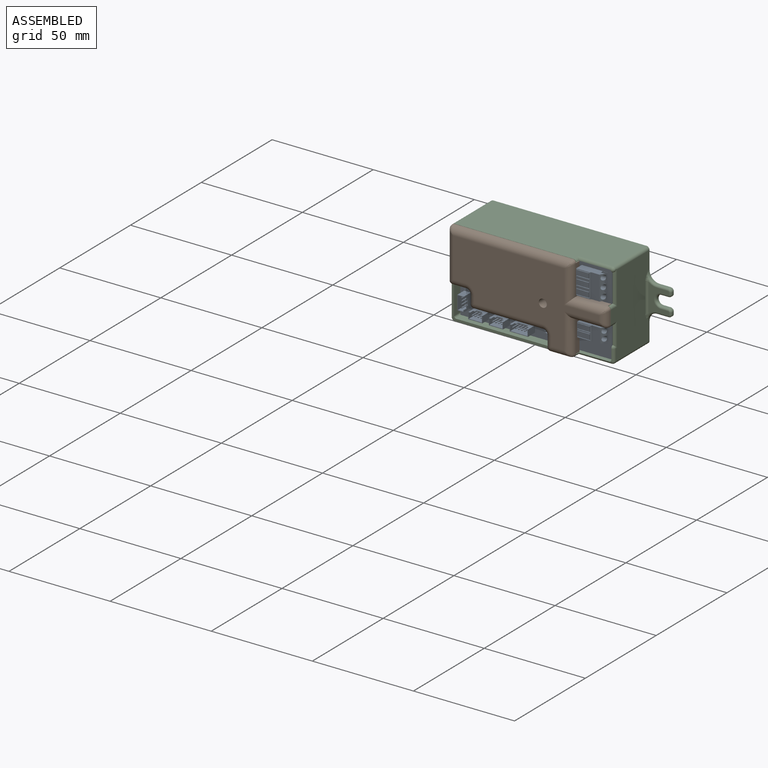
[diagram: assembled view]
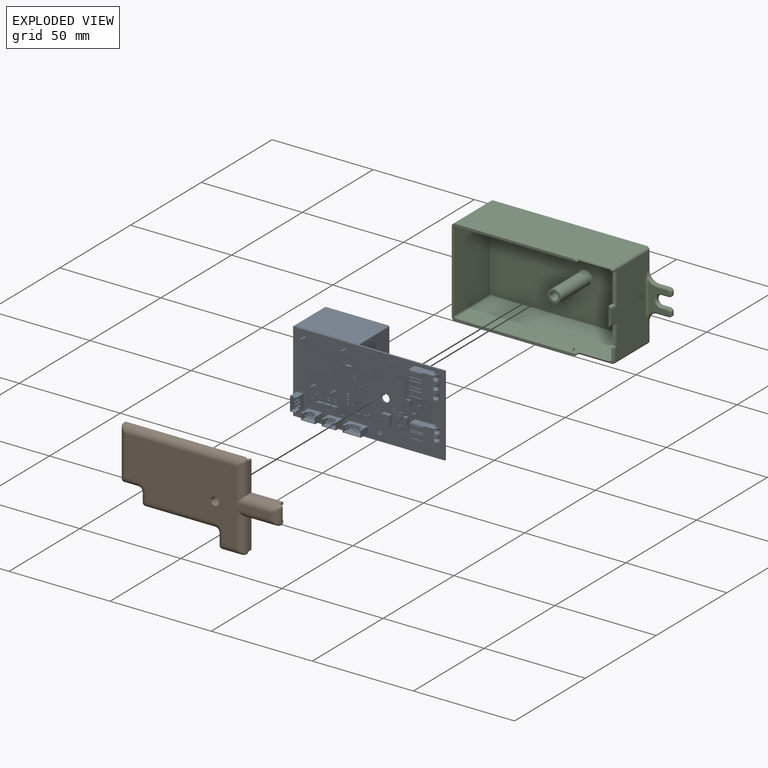
[diagram: exploded view]
GUIDED TOUR — MATED ASSEMBLY WITH SUBASSEMBLIES (Onshape document 57976f48e4b0c794bdea1abc, AutoMate assembly 57976f48e4b0c794bdea1abc_2b415a0333e4cbea0e41d511_ac2d905284503aa55e5fa16b_default)

This assembly has 10 component occurrences arranged in 3 top-level units: 2 individual components plus 1 subassembly (S0). The tour has two levels: first the top level, where each subassembly is treated as one rigid unit; then each subassembly is toured internally in its own section (nesting deeper than one subassembly level is flattened into its subassembly's section).

Components are labeled P0..P9 across the whole record; subassembly units are labeled S0..S0. A mate is a constraint between two units; its type names the relative motion it leaves free:
  FASTENED — locks the two components together rigidly (no relative motion).
Axis/direction vectors are unit vectors and 'through' points are millimeter coordinates, both in the assembly's world frame.

TOP-LEVEL MATES (between units; each subassembly's internal mates are listed in its own section)
  1. FASTENED "Fastened 2": S0 <-> P8, direction (0.000, 1.000, 0.000) through (8.66, 0.98, 0.19) mm
  2. FASTENED "Fastened 1": P8 <-> P1, direction (0.000, -1.000, 0.000) through (8.66, 1.23, 0.19) mm

TOP-LEVEL ASSEMBLY ORDER
  1. P8 — the base component [order verified]
  2. S0 [order verified]
  3. P1 [order verified]
Order-tag legend:
  [order verified] — this step's position reverses a verified removal order: the component was checked to insert without passing through the ones already placed.

Of the 10 component occurrences, 1 carries the full construction recipe — the FeatureScript program that regenerates the part's solid from scratch; the rest are supplied as boundary geometry only. Each toured unit is shown spotlighted twice — assembled, then exploded with a leader line back to its socket (green = recipe-attached component, orange = geometry-only, blue = subassembly unit; the rest desaturated gray).
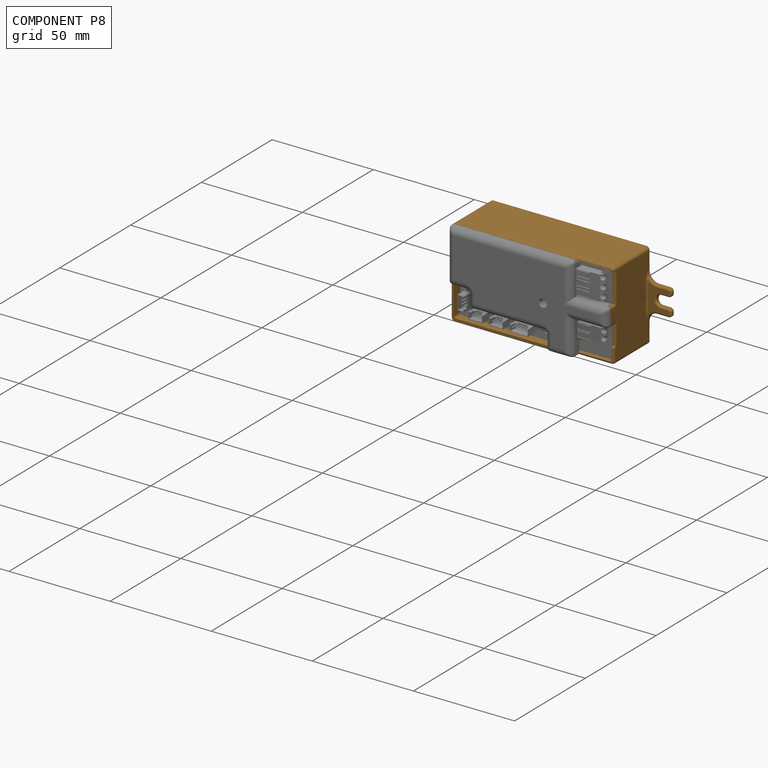
[diagram: component P8 — assembled]
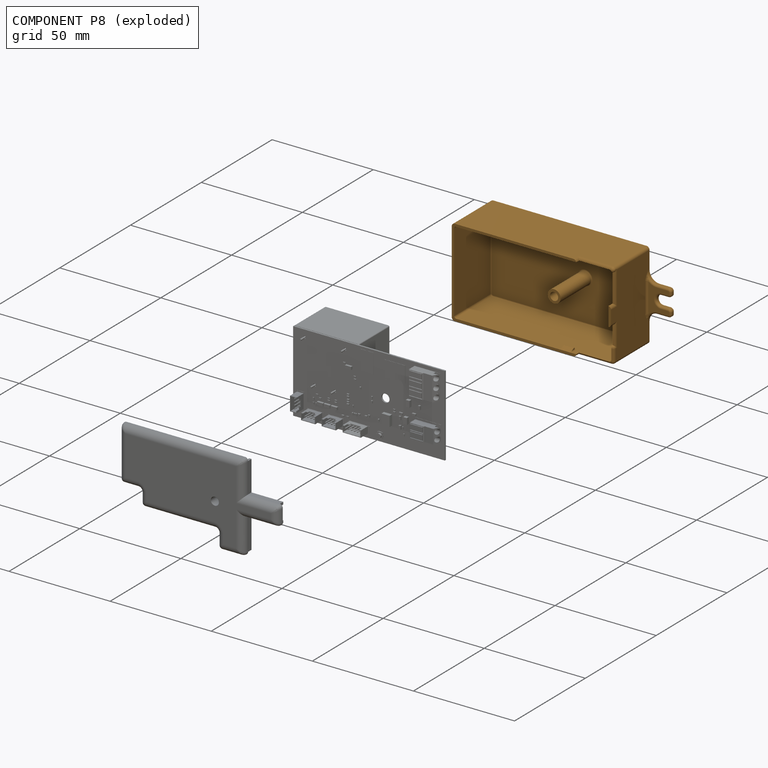
[diagram: component P8 — exploded]
COMPONENT P8 — geometry summary (no construction recipe available for this part):
  bounding box: 103.6 x 44.3 x 28.1 mm
  B-rep topology: 1 solid, 137 faces, 680 edges
  volume: 12294 mm^3 (10% of its bounding box)
Held by: FASTENED mate "Fastened 2" to P0; FASTENED mate "Fastened 1" to P1.
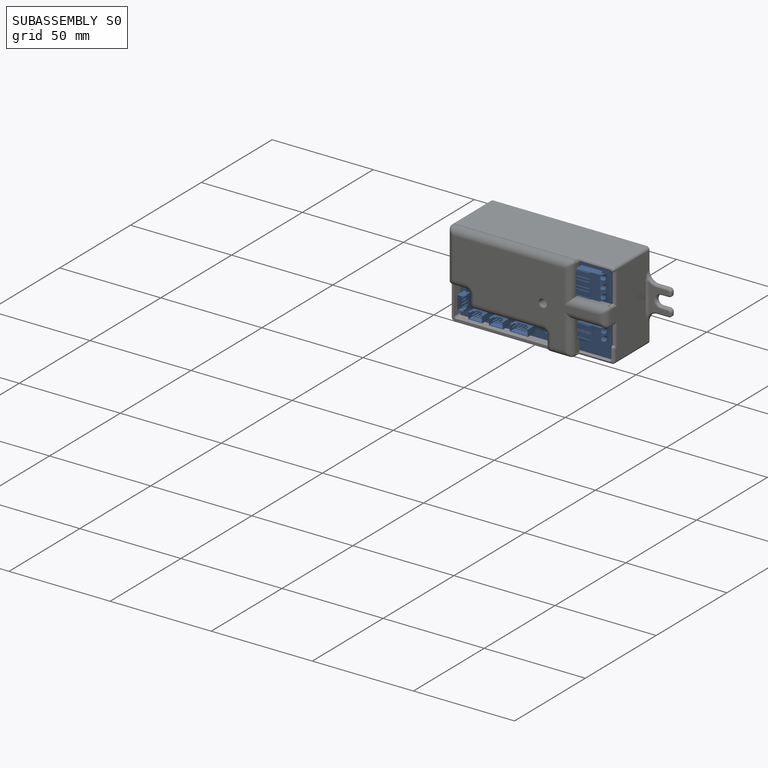
[diagram: subassembly S0 — assembled]
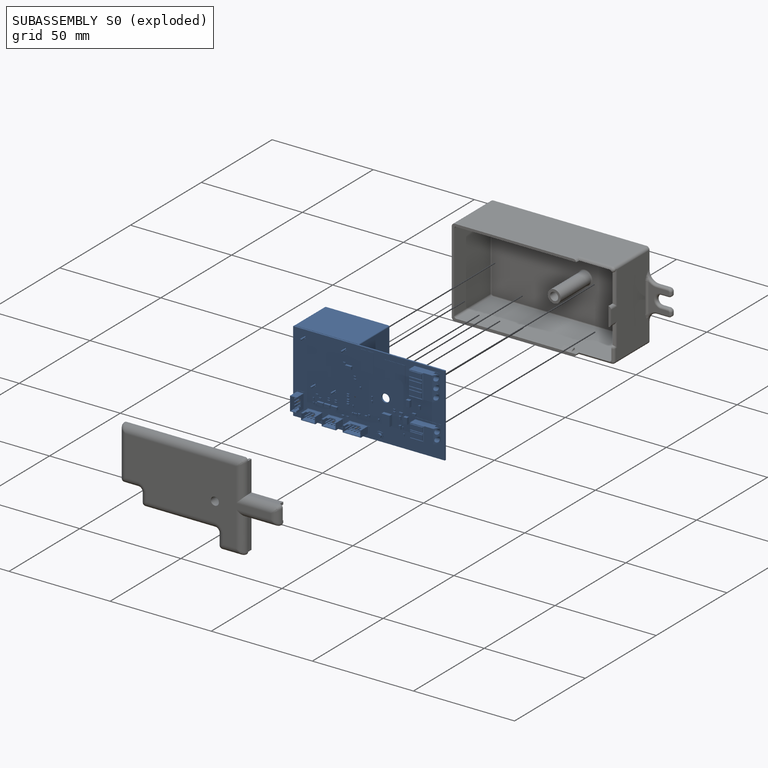
[diagram: subassembly S0 — exploded]
SUBASSEMBLY S0 — 8 components (P0, P2, P3, P4, P5, P6, P7, P9), of which 1 recipe-attached; toured below.
Held by: FASTENED mate "Fastened 2" to P8.
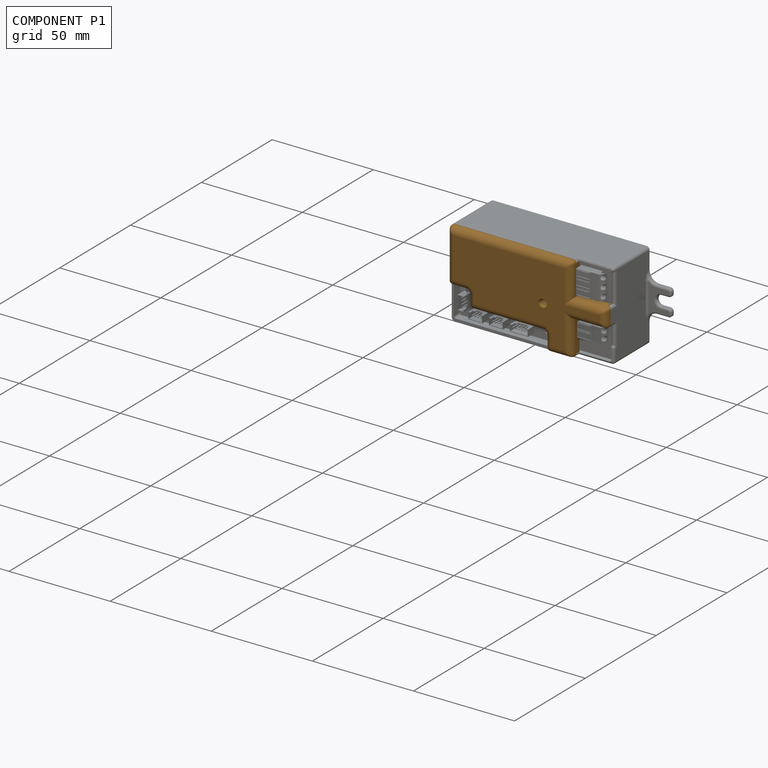
[diagram: component P1 — assembled]
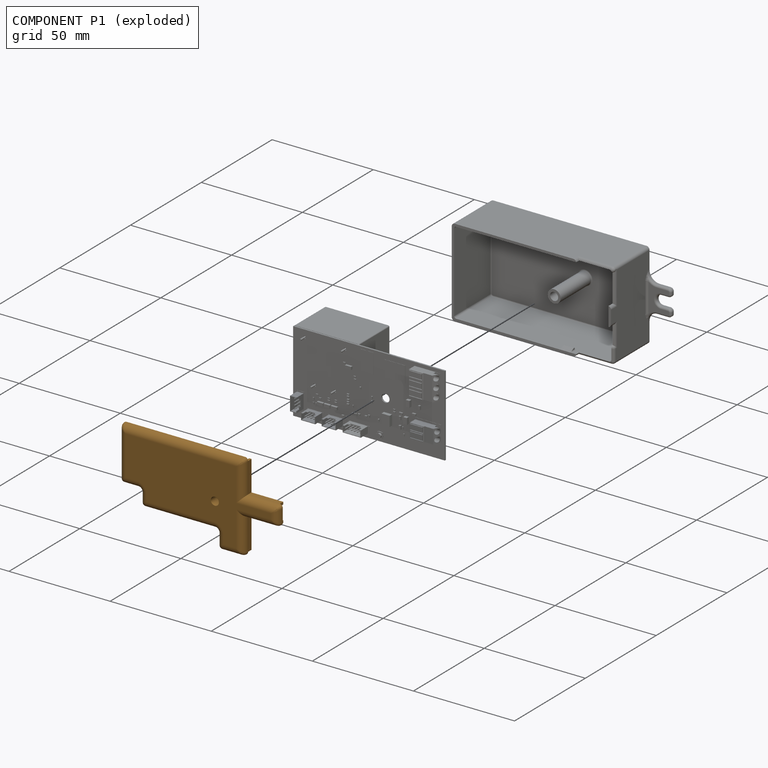
[diagram: component P1 — exploded]
COMPONENT P1 — geometry summary (no construction recipe available for this part):
  bounding box: 78.7 x 43.5 x 7.0 mm
  B-rep topology: 1 solid, 106 faces, 514 edges
  volume: 3355 mm^3 (14% of its bounding box)
Held by: FASTENED mate "Fastened 1" to P8.
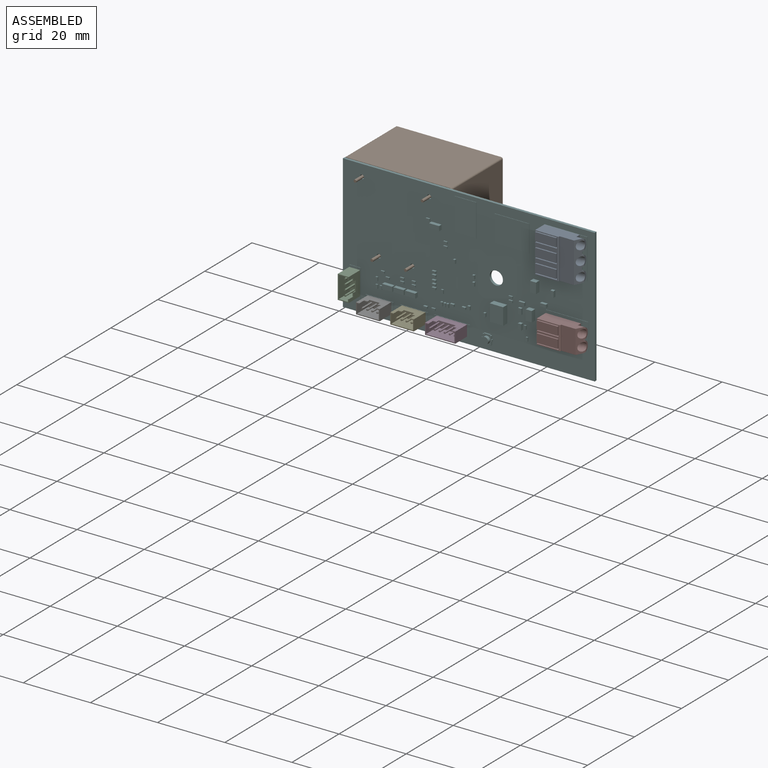
[diagram: subassembly S0 — assembled view]
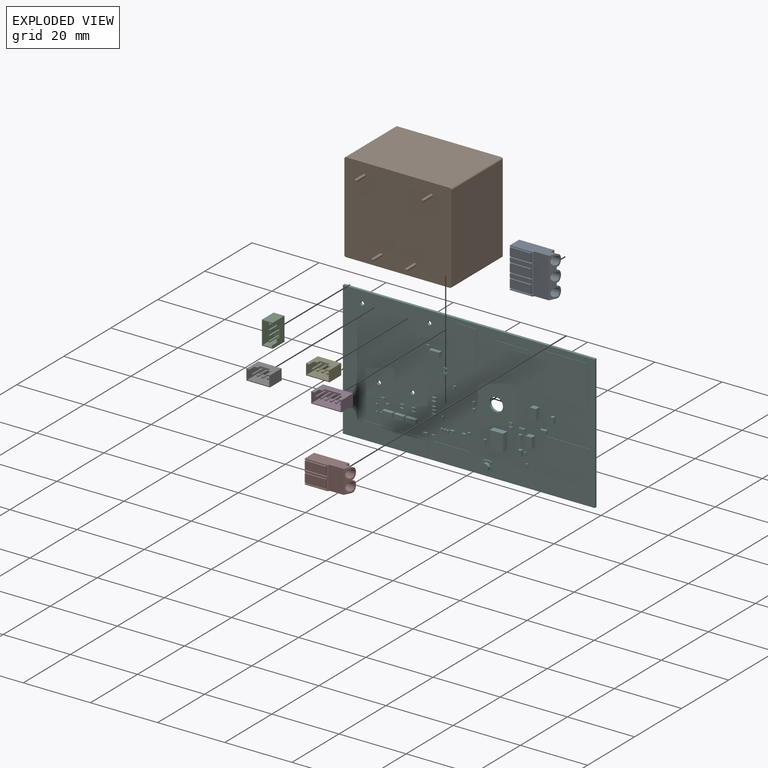
[diagram: subassembly S0 — exploded view]
SUBASSEMBLY S0 TOUR — 8 components, shown here in isolation at its own camera.

INTERNAL MATES
  1. FASTENED "Fastened 3": P0 <-> P6, direction (0.000, 1.000, 0.000) through (23.09, 0.10, 18.54) mm
  2. FASTENED "Fastened 7": P4 <-> P6, direction (0.000, 1.000, 0.000) through (-4.47, 0.10, -16.22) mm
  3. FASTENED "Fastened 1": P2 <-> P6, direction (0.000, -1.000, 0.000) through (-11.30, 1.18, 16.75) mm
  4. FASTENED "Fastened 4": P3 <-> P6, direction (0.000, 1.000, 0.000) through (-35.03, 0.20, -15.45) mm
  5. FASTENED "Fastened 6": P7 <-> P6, direction (0.000, 1.000, 0.000) through (-26.01, 0.10, -16.22) mm
  6. FASTENED "Fastened 5": P5 <-> P6, direction (0.000, 1.000, 0.000) through (-15.81, 0.10, -16.22) mm
  7. FASTENED "Fastened 2": P9 <-> P6, direction (0.000, 1.000, 0.000) through (23.49, 0.20, -12.20) mm
  8. FASTENED "Fastened 4": P3 <-> P6, direction (0.000, 1.000, 0.000) through (-35.03, 0.20, -15.45) mm
  9. FASTENED "Fastened 7": P4 <-> P6, direction (0.000, 1.000, 0.000) through (-4.47, 0.10, -16.22) mm
  10. FASTENED "Fastened 2": P9 <-> P6, direction (0.000, 1.000, 0.000) through (23.49, 0.20, -12.20) mm
  11. FASTENED "Fastened 3": P0 <-> P6, direction (0.000, 1.000, 0.000) through (23.09, 0.10, 18.54) mm
  12. FASTENED "Fastened 5": P5 <-> P6, direction (0.000, 1.000, 0.000) through (-15.81, 0.10, -16.22) mm
  13. FASTENED "Fastened 6": P7 <-> P6, direction (0.000, 1.000, 0.000) through (-26.01, 0.10, -16.22) mm
  14. FASTENED "Fastened 1": P2 <-> P6, direction (0.000, -1.000, 0.000) through (-11.30, 1.18, 16.75) mm

ASSEMBLY ORDER (within the subassembly)
  1. P2 — the base component [order verified]
  2. P6 [order verified]
  3. P9 [order verified]
  4. P3 [order verified]
  5. P7 [order verified]
  6. P5 [order verified]
  7. P4 [order verified]
  8. P0 [order verified]
Order-tag legend:
  [order verified] — this step's position reverses a verified removal order: the component was checked to insert without passing through the ones already placed.
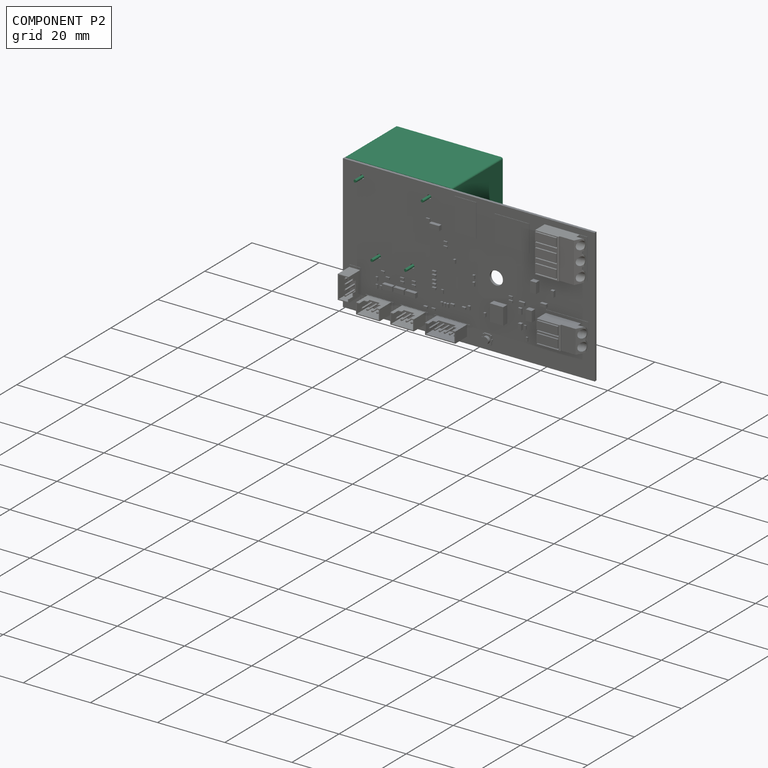
[diagram: component P2 — assembled]
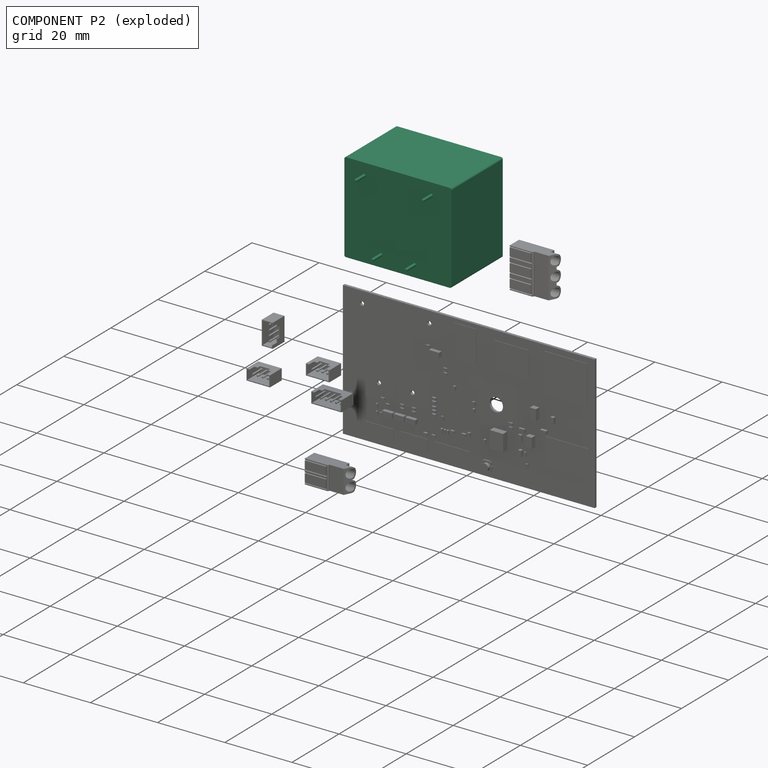
[diagram: component P2 — exploded]
COMPONENT P2 — recipe-attached (CADFS 00221526, mesh-verified: the recipe's output STEP matches this component's geometry to below the mesh-comparison resolution (tessellation chordal tolerance ~0.0736 mm)).
Held by: FASTENED mate "Fastened 1" to P6; FASTENED mate "Fastened 1" to P6.
Construction recipe (FeatureScript — the CAD program that rebuilds this solid; sketch coordinates are in the units given by the * unit suffixes, e.g. mm):

FeatureScript 1511;
import(path : "onshape/std/geometry.fs", version : "1511.0");
import(path : "onshape/std/common.fs", version : "1511.0");
const mm = millimeter;
const VERTEX = EntityType.VERTEX;
const EDGE = EntityType.EDGE;
const FACE = EntityType.FACE;
const BODY = EntityType.BODY;
function v(x, y){return vector(x, y);}
function OD(order){return orderDisambiguation(order);}
function OSD(set){return originalSetDisambiguation(set);}
function TD(topology){return topologyDisambiguation(topology);}
function TDD(query){return trueDependencyDisambiguation(query);}
function sQuery(a, b, c) {return sketchEntityQuery(a, b, c);}

annotation { "Feature Type Name" : "Feature", "Feature Type Description" : "" }
export const myFeature = defineFeature(function(context is Context, id is Id, definition is map)
    precondition{}
    {
        {
            var Q0;
            Q0=qCreatedBy(makeId("Front.planeOp"),FACE);
            var sketch = newSketch(context, id + "F0", { "sketchPlane" : qUnion([Q0])});
            skLineSegment(sketch, "E0", {"start": v(0, 0) * mm, "end": v(15.95, 0) * mm, "construction": true});
            skLineSegment(sketch, "E1", {"start": v(0, 0) * mm, "end": v(0, 10) * mm, "construction": true});
            skLineSegment(sketch, "E2", {"start": v(0, 10) * mm, "end": v(10, 10) * mm, "construction": true});
            skLineSegment(sketch, "E3", {"start": v(0, 0) * mm, "end": v(0, -10) * mm, "construction": true});
            skLineSegment(sketch, "E4", {"start": v(0, -10) * mm, "end": v(5, -10) * mm, "construction": true});
            skCircle(sketch, "E5", {"center": v(5, -10) * mm, "radius": 0.4 * mm, "construction": true});
            skCircle(sketch, "E6", {"center": v(10, 10) * mm, "radius": 0.4 * mm, "construction": true});
            skLineSegment(sketch, "E7", {"start": v(15.95, 0) * mm, "end": v(15.95, 12.95) * mm});
            skLineSegment(sketch, "E8", {"start": v(15.45, 13.45) * mm, "end": v(0, 13.45) * mm});
            skLineSegment(sketch, "E9", {"start": v(15.95, 0) * mm, "end": v(15.95, -12.95) * mm});
            skLineSegment(sketch, "E10", {"start": v(15.45, -13.45) * mm, "end": v(0, -13.45) * mm});
            skPoint(sketch, "E11.visualSharp", {"position": v(15.95, 13.45) * mm});
            skArc(sketch, "E11.filletArc", {"start": v(15.95, 12.95) * mm, "mid": v(15.8, 13.3) * mm, "end": v(15.45, 13.45) * mm});
            skPoint(sketch, "E12.visualSharp", {"position": v(15.95, -13.45) * mm});
            skArc(sketch, "E12.filletArc", {"start": v(15.45, -13.45) * mm, "mid": v(15.8, -13.3) * mm, "end": v(15.95, -12.95) * mm});
            skArc(sketch, "E13.MirrorCS", {"start": v(-15.45, -13.45) * mm, "mid": v(-15.8, -13.3) * mm, "end": v(-15.95, -12.95) * mm});
            skLineSegment(sketch, "E14.MirrorCS", {"start": v(-15.45, -13.45) * mm, "end": v(0, -13.45) * mm});
            skPoint(sketch, "E15.MirrorP", {"position": v(-15.95, -13.45) * mm});
            skLineSegment(sketch, "E16.MirrorCS", {"start": v(-15.95, 0) * mm, "end": v(-15.95, -12.95) * mm});
            skArc(sketch, "E17.MirrorCS", {"start": v(-15.95, 12.95) * mm, "mid": v(-15.8, 13.3) * mm, "end": v(-15.45, 13.45) * mm});
            skCircle(sketch, "E18.MirrorC", {"center": v(-10, 10) * mm, "radius": 0.4 * mm, "construction": true});
            skCircle(sketch, "E19.MirrorC", {"center": v(-5, -10) * mm, "radius": 0.4 * mm, "construction": true});
            skLineSegment(sketch, "E20.MirrorCS", {"start": v(0, 0) * mm, "end": v(-15.95, 0) * mm, "construction": true});
            skPoint(sketch, "E21.MirrorP", {"position": v(-15.95, 13.45) * mm});
            skLineSegment(sketch, "E22.MirrorCS", {"start": v(-15.45, 13.45) * mm, "end": v(0, 13.45) * mm});
            skLineSegment(sketch, "E23.MirrorCS", {"start": v(-15.95, 0) * mm, "end": v(-15.95, 12.95) * mm});
            skLineSegment(sketch, "E24.MirrorCS", {"start": v(0, 10) * mm, "end": v(-10, 10) * mm, "construction": true});
            skLineSegment(sketch, "E25.MirrorCS", {"start": v(0, -10) * mm, "end": v(-5, -10) * mm, "construction": true});
            skSolve(sketch);
        }
        {
            var Q0;
            Q0=qSketchRegion(id+"F0",true);
            extrude(context, id + "F1", {"entities" : qUnion([Q0]), "depth" : 21.8 * mm});
        }
        {
            var Q0;
            Q0=makeQuery(id+"F1.opExtrude","CAP_FACE",FACE,{"disambiguationData":[OSD([sQuery(id+"F0.wireOp",EDGE,"E7"),sQuery(id+"F0.wireOp",EDGE,"E8"),sQuery(id+"F0.wireOp",EDGE,"E9"),sQuery(id+"F0.wireOp",EDGE,"E10"),sQuery(id+"F0.wireOp",EDGE,"E11.filletArc"),sQuery(id+"F0.wireOp",EDGE,"E12.filletArc"),sQuery(id+"F0.wireOp",EDGE,"E13.MirrorCS"),sQuery(id+"F0.wireOp",EDGE,"E14.MirrorCS"),sQuery(id+"F0.wireOp",EDGE,"E16.MirrorCS"),sQuery(id+"F0.wireOp",EDGE,"E17.MirrorCS"),sQuery(id+"F0.wireOp",EDGE,"E22.MirrorCS"),sQuery(id+"F0.wireOp",EDGE,"E23.MirrorCS")])],"isStart":false});
            var sketch = newSketch(context, id + "F2", { "sketchPlane" : qUnion([Q0])});
            skCircle(sketch, "E26", {"center": v(10, 10) * mm, "radius": 0.4 * mm});
            skCircle(sketch, "E27", {"center": v(-10, 10) * mm, "radius": 0.4 * mm});
            skCircle(sketch, "E28", {"center": v(-5, -10) * mm, "radius": 0.4 * mm});
            skCircle(sketch, "E29", {"center": v(5, -10) * mm, "radius": 0.4 * mm});
            skSolve(sketch);
        }
        {
            var Q0;
            Q0=qSketchRegion(id+"F2",true);
            extrude(context, id + "F3", {"entities" : qUnion([Q0]), "operationType" : NewBodyOperationType.ADD, "depth" : 4 * mm});
        }
    });
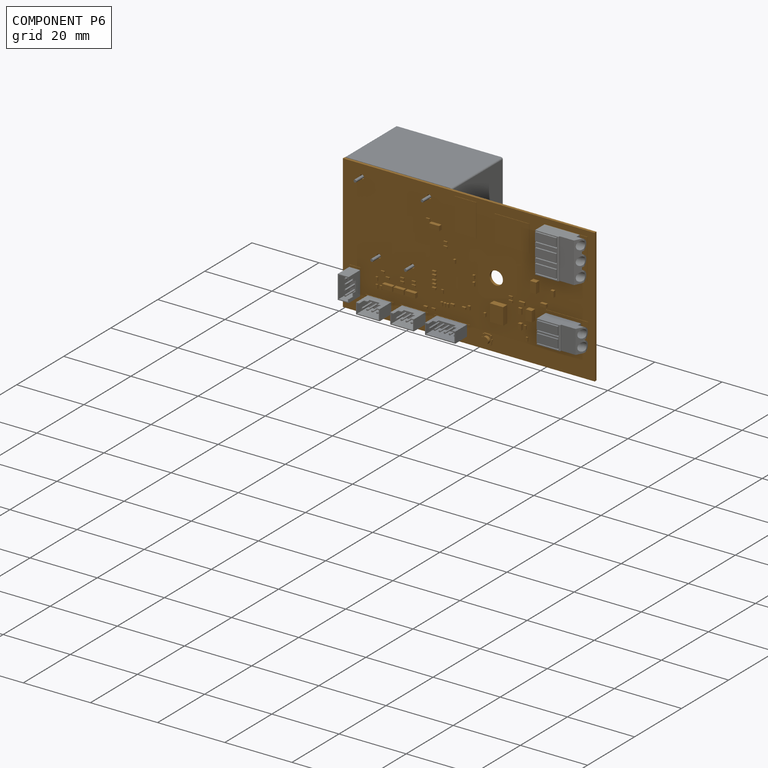
[diagram: component P6 — assembled]
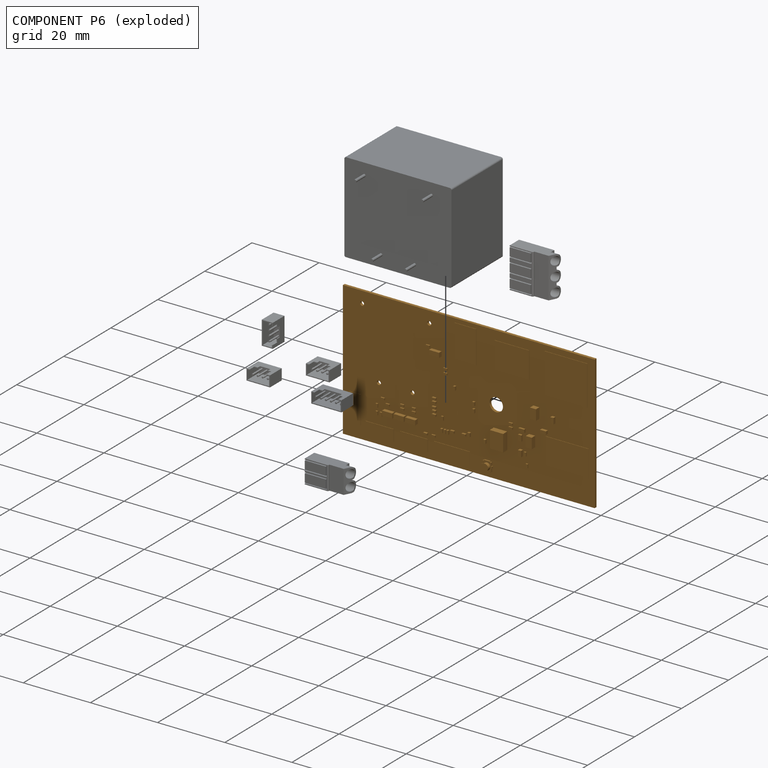
[diagram: component P6 — exploded]
COMPONENT P6 — geometry summary (no construction recipe available for this part):
  bounding box: 75.0 x 40.0 x 2.5 mm
  B-rep topology: 1 solid, 304 faces, 1478 edges
  volume: 2465 mm^3 (33% of its bounding box)
Held by: FASTENED mate "Fastened 3" to P0; FASTENED mate "Fastened 7" to P4; FASTENED mate "Fastened 1" to P2; FASTENED mate "Fastened 4" to P3; FASTENED mate "Fastened 6" to P7; FASTENED mate "Fastened 5" to P5; FASTENED mate "Fastened 2" to P9; FASTENED mate "Fastened 4" to P3; FASTENED mate "Fastened 7" to P4; FASTENED mate "Fastened 2" to P9; FASTENED mate "Fastened 3" to P0; FASTENED mate "Fastened 5" to P5; FASTENED mate "Fastened 6" to P7; FASTENED mate "Fastened 1" to P2.
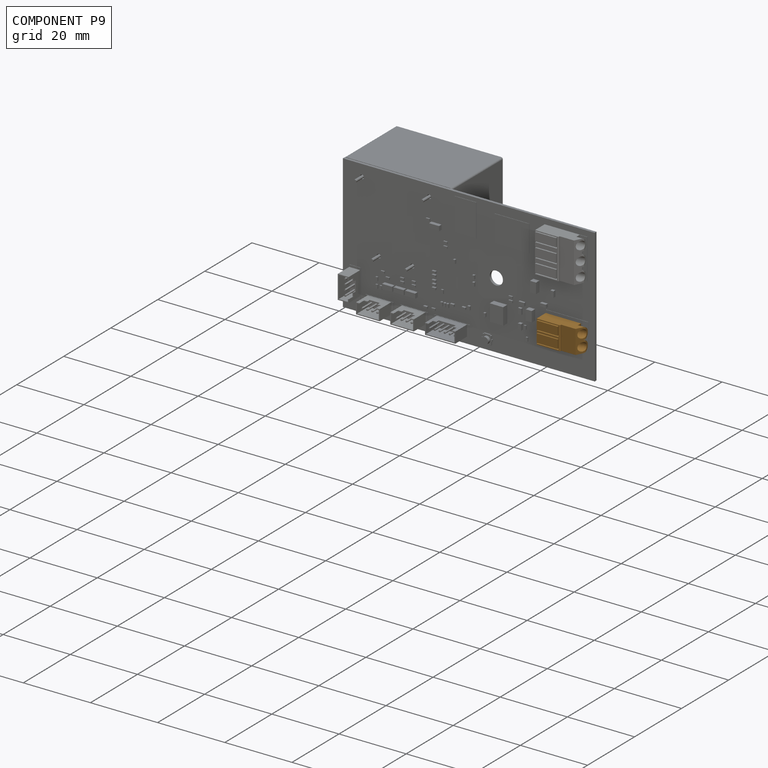
[diagram: component P9 — assembled]
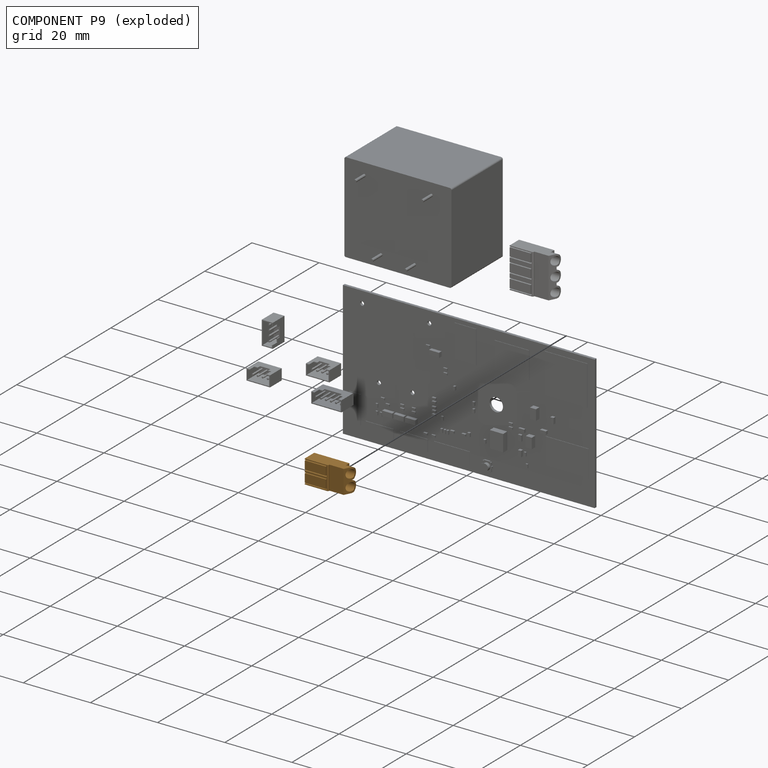
[diagram: component P9 — exploded]
COMPONENT P9 — geometry summary (no construction recipe available for this part):
  bounding box: 12.5 x 7.0 x 4.0 mm
  B-rep topology: 1 solid, 39 faces, 234 edges
  volume: 192 mm^3 (55% of its bounding box)
Held by: FASTENED mate "Fastened 2" to P6; FASTENED mate "Fastened 2" to P6.
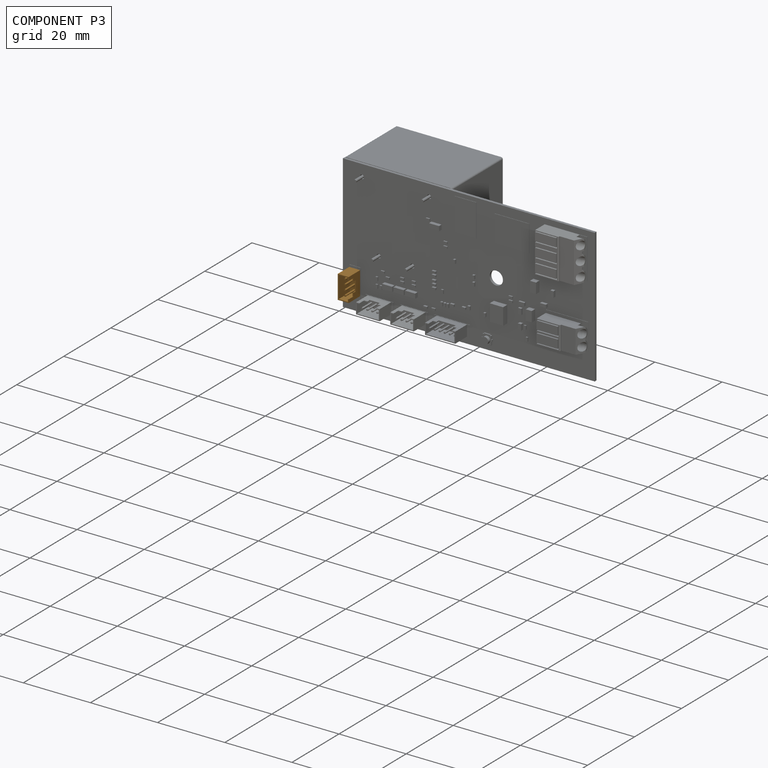
[diagram: component P3 — assembled]
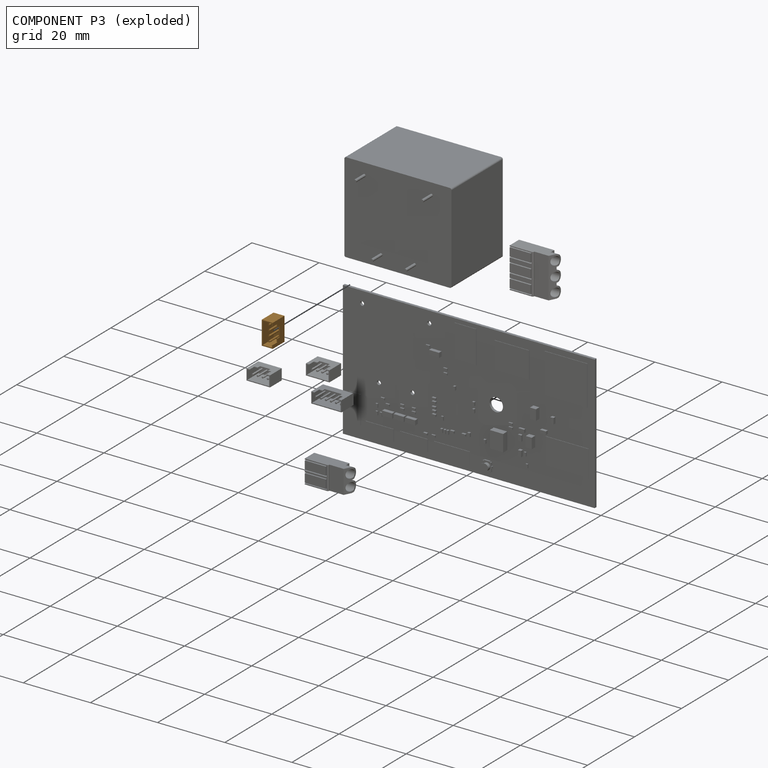
[diagram: component P3 — exploded]
COMPONENT P3 — geometry summary (no construction recipe available for this part):
  bounding box: 7.0 x 5.0 x 3.3 mm
  B-rep topology: 1 solid, 26 faces, 120 edges
  volume: 29 mm^3 (25% of its bounding box)
  symmetry: mirror-symmetric across its x mid-plane
Held by: FASTENED mate "Fastened 4" to P6; FASTENED mate "Fastened 4" to P6.
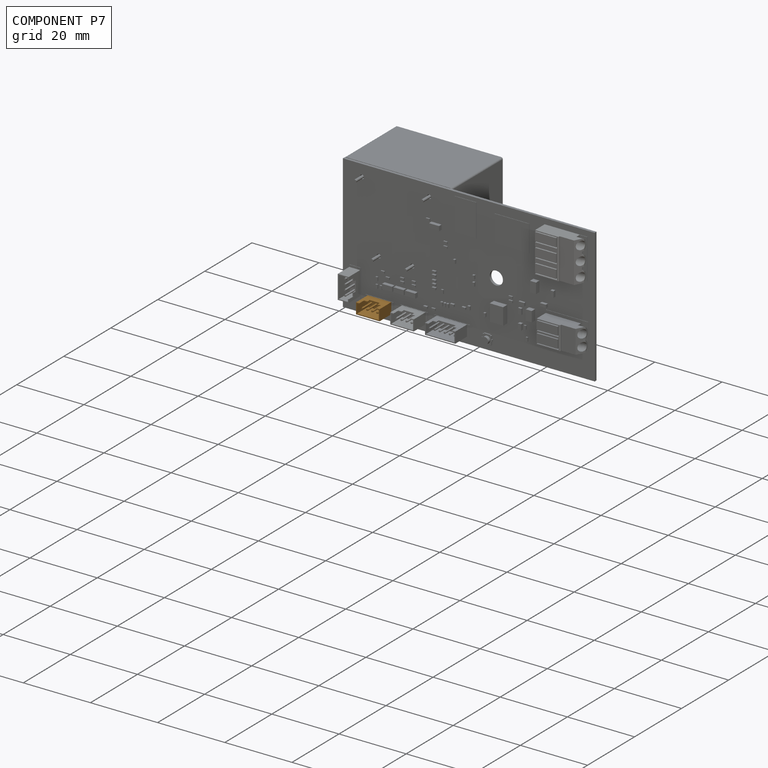
[diagram: component P7 — assembled]
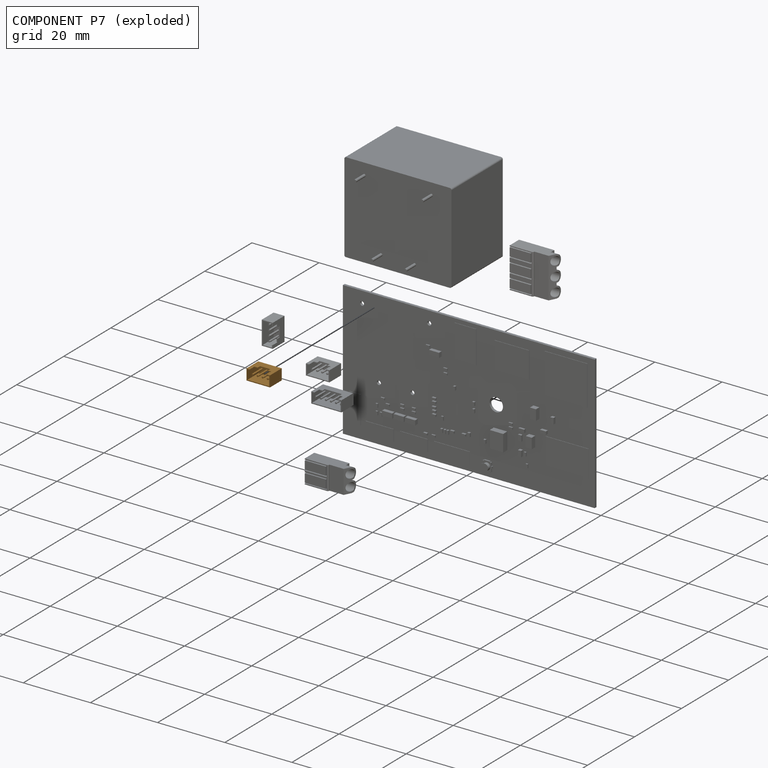
[diagram: component P7 — exploded]
COMPONENT P7 — geometry summary (no construction recipe available for this part):
  bounding box: 7.0 x 5.0 x 3.3 mm
  B-rep topology: 1 solid, 26 faces, 120 edges
  volume: 29 mm^3 (25% of its bounding box)
  symmetry: mirror-symmetric across its x mid-plane
Held by: FASTENED mate "Fastened 6" to P6; FASTENED mate "Fastened 6" to P6.
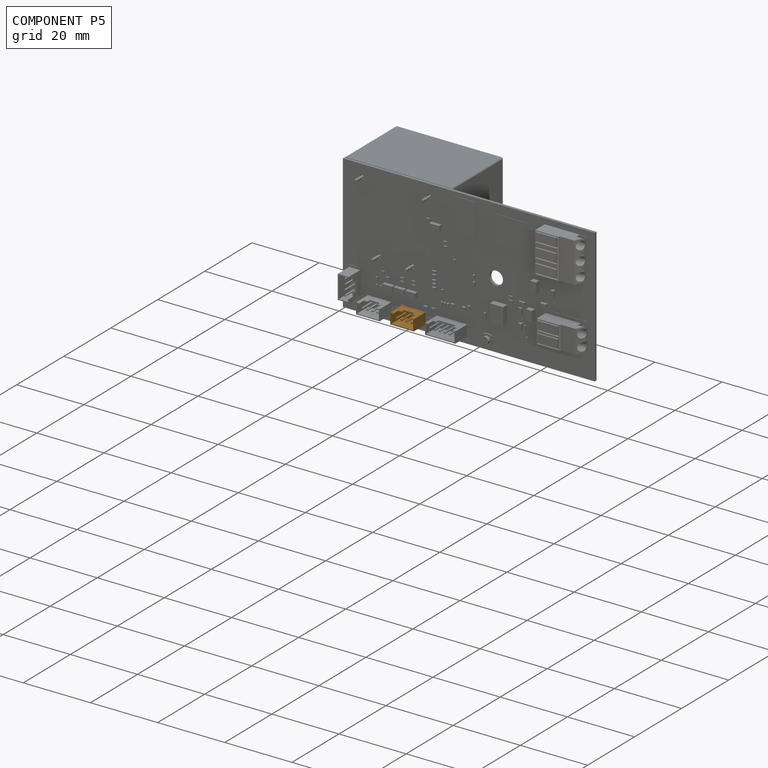
[diagram: component P5 — assembled]
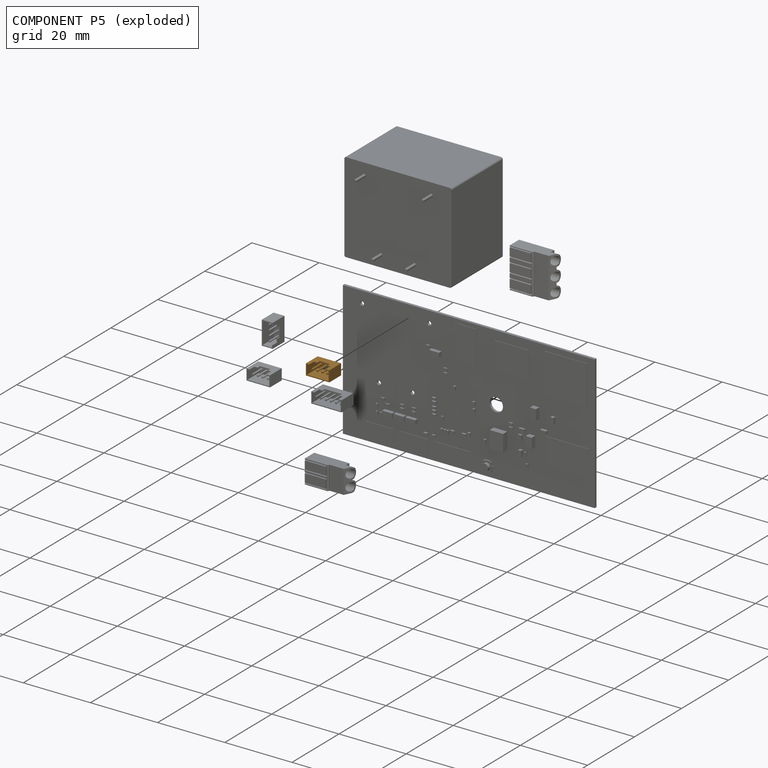
[diagram: component P5 — exploded]
COMPONENT P5 — geometry summary (no construction recipe available for this part):
  bounding box: 7.0 x 5.0 x 3.3 mm
  B-rep topology: 1 solid, 26 faces, 120 edges
  volume: 29 mm^3 (25% of its bounding box)
  symmetry: mirror-symmetric across its x mid-plane
Held by: FASTENED mate "Fastened 5" to P6; FASTENED mate "Fastened 5" to P6.
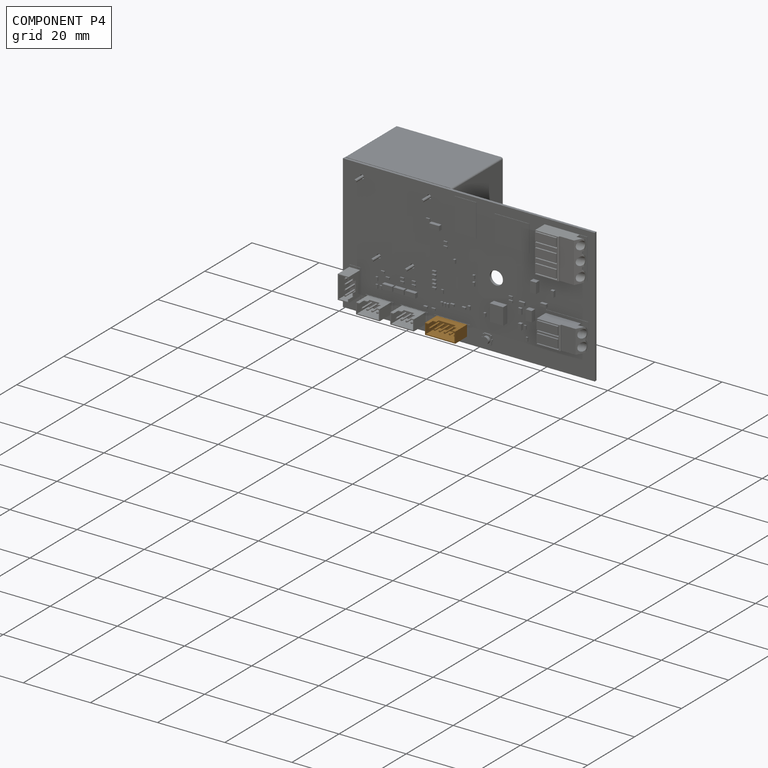
[diagram: component P4 — assembled]
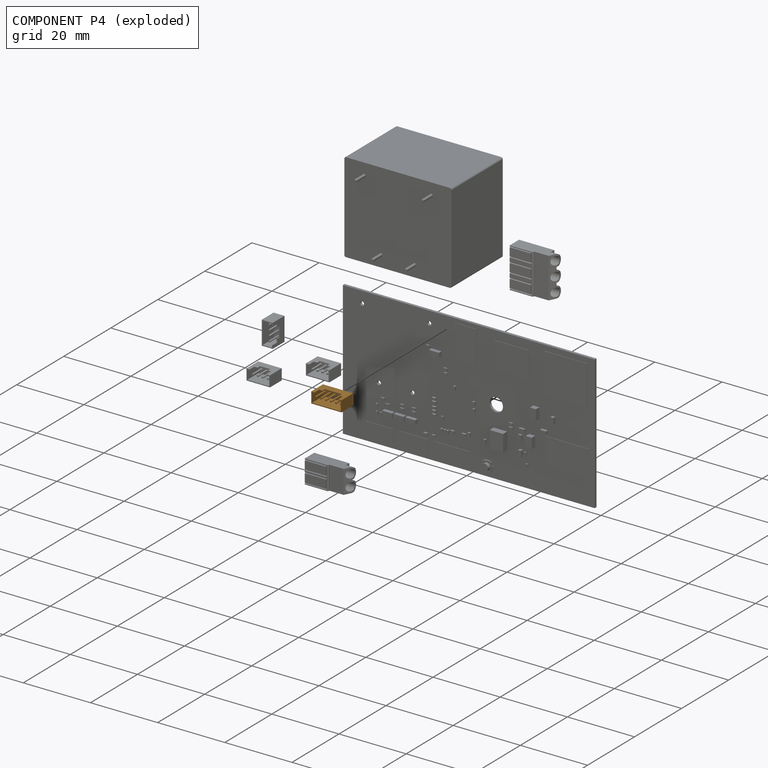
[diagram: component P4 — exploded]
COMPONENT P4 — geometry summary (no construction recipe available for this part):
  bounding box: 9.0 x 5.0 x 3.3 mm
  B-rep topology: 1 solid, 30 faces, 132 edges
  volume: 35 mm^3 (24% of its bounding box)
  symmetry: mirror-symmetric across its x mid-plane
Held by: FASTENED mate "Fastened 7" to P6; FASTENED mate "Fastened 7" to P6.
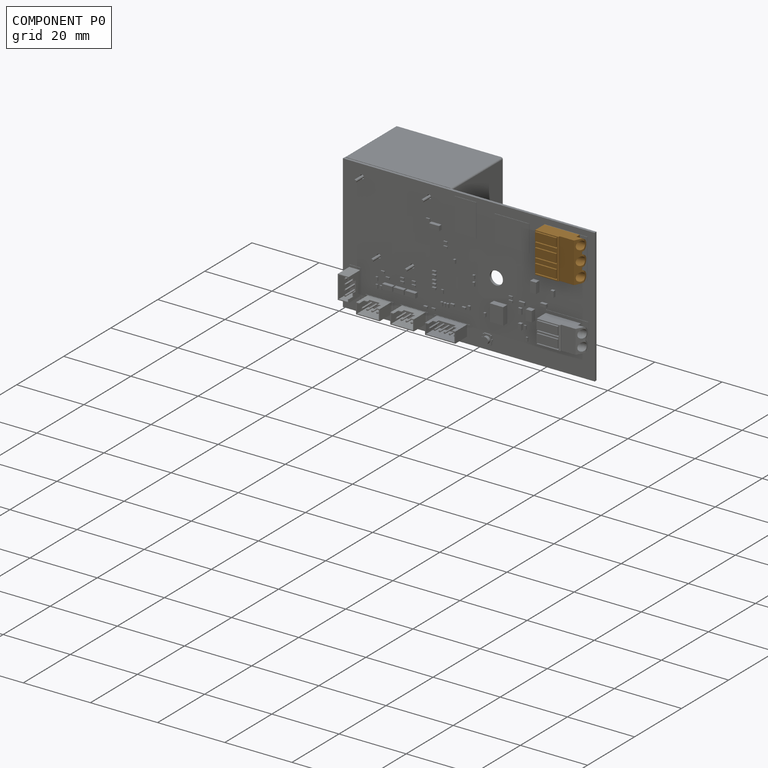
[diagram: component P0 — assembled]
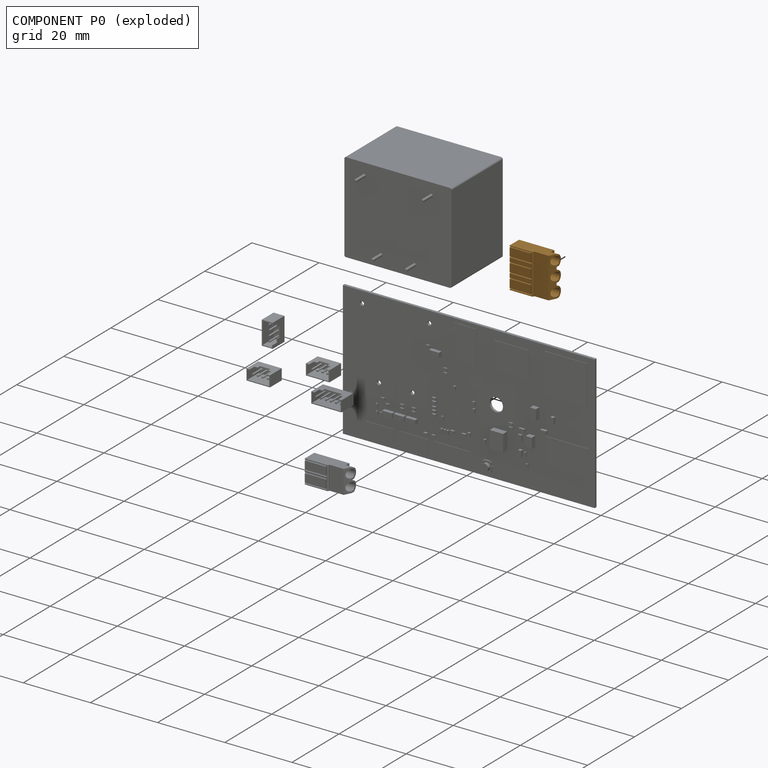
[diagram: component P0 — exploded]
COMPONENT P0 — geometry summary (no construction recipe available for this part):
  bounding box: 12.5 x 12.0 x 4.0 mm
  B-rep topology: 1 solid, 53 faces, 324 edges
  volume: 352 mm^3 (59% of its bounding box)
  symmetry: mirror-symmetric across its z mid-plane
Held by: FASTENED mate "Fastened 3" to P6; FASTENED mate "Fastened 3" to P6.
PROVENANCE & LICENSES
Assembly (occurrences, transforms, mates, per-part STEP geometry): AutoMate dataset, Zenodo record 7776208, CC0.
Construction recipes: CADFS (HuggingFace VladPyatov/CADFS, CC-BY-4.0, layered over the ABC dataset), FeatureScript reconstruction programs keyed by ABC model id.
Join: ABC meta listings map ABC model id -> Onshape documentId; within a shared document, parts are matched by geometric signature (bounding-box dims + volume at 0.1% relative tolerance, exact B-rep face/solid counts).
Verification: 1 of this assembly's 10 components carries a recipe attachment, and every attachment is mesh-verified: the CADFS STEP and the AutoMate member STEP were compared as meshes in their shared local frame (symmetric sampled-point-to-mesh distance); worst across the 1 attachment: below the mesh-comparison resolution (tessellation chordal tolerance ~0.0736 mm) on a 49 mm part.
Renders: orthographic iso camera (az 35 / el 25); the floor grid conveys scale (grid pitch printed in each image; no ruler). In the exploded view each component is displaced by its stored offset vector: the offsets alone carry the explosion direction (mate normal/axis signs are not orientation cues and do not encode it), and separation distances are assigned per mate-chain, not proportionally to assembly-order depth.
